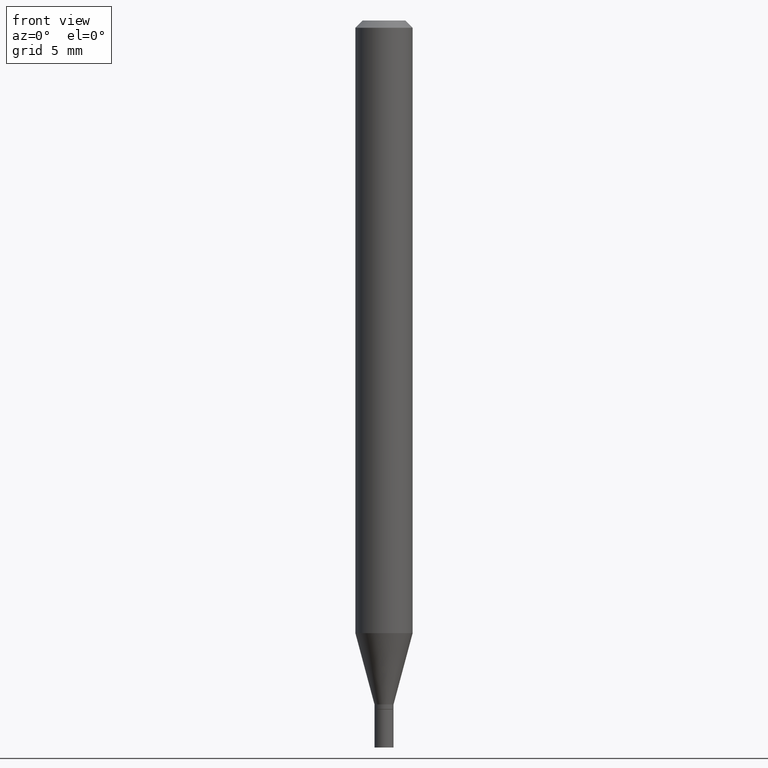
[diagram: clean part render]
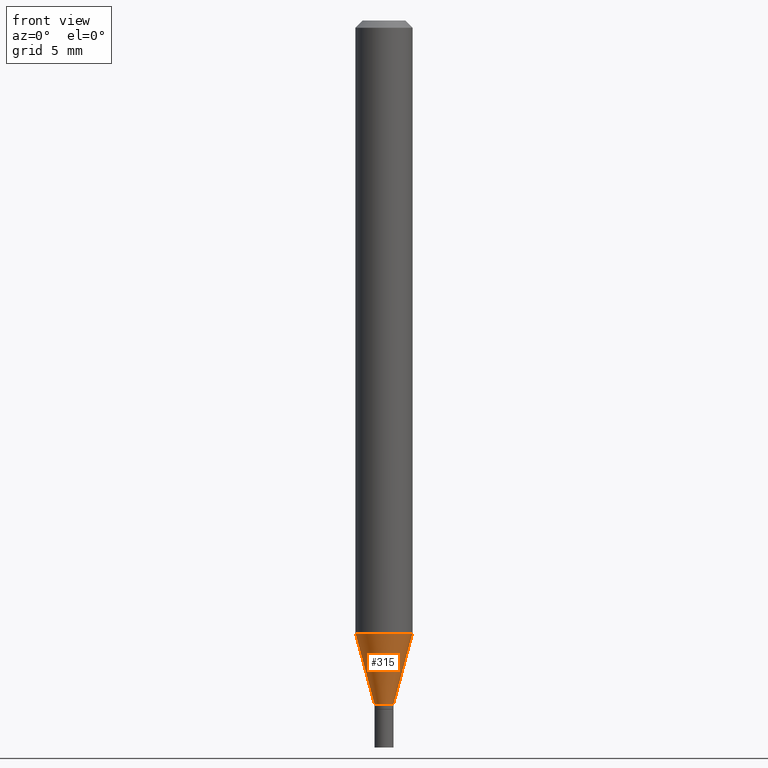
[diagram: same view with one face highlighted and labeled with its STEP entity id]
A machine part, front view. The second image highlights one B-rep face of the part: STEP entity #315.
In plain terms, the highlighted conical surface has half-angle 15 deg.
Its self-contained STEP definition (entity closure, byte-faithful):
#19 = DIRECTION ( 'NONE',  ( 0.2588190451025211836, 1.565188264969622559E-15, 0.9659258262890679791 ) ) ;
#36 = VERTEX_POINT ( 'NONE', #184 ) ;
#43 = DIRECTION ( 'NONE',  ( 1.000000000000000000, -6.982962677686266711E-15, 0.000000000000000000 ) ) ;
#44 = CARTESIAN_POINT ( 'NONE',  ( -0.05905000000000001914, -3.994159004369345529E-15, -1.264143800722164368 ) ) ;
#50 = CARTESIAN_POINT ( 'NONE',  ( 3.091424231198372341E-29, -4.413734489835684233E-15, -1.264143800722164368 ) ) ;
#51 = AXIS2_PLACEMENT_3D ( 'NONE', #446, #113, #326 ) ;
#58 = LINE ( 'NONE', #198, #325 ) ;
#75 = CARTESIAN_POINT ( 'NONE',  ( 3.450556485527227151E-29, -4.926480169107677131E-15, -1.410999999999999810 ) ) ;
#77 = CARTESIAN_POINT ( 'NONE',  ( -0.01969999999999989468, -4.390331127266142070E-15, -1.410999999999999810 ) ) ;
#88 = VERTEX_POINT ( 'NONE', #44 ) ;
#93 = LINE ( 'NONE', #381, #219 ) ;
#113 = DIRECTION ( 'NONE',  ( -2.445468806185136597E-29, 3.491481338843145583E-15, 1.000000000000000000 ) ) ;
#117 = CIRCLE ( 'NONE', #388, 0.05905000000000001914 ) ;
#118 = AXIS2_PLACEMENT_3D ( 'NONE', #75, #345, #43 ) ;
#121 = DIRECTION ( 'NONE',  ( -0.2588190451025211836, 5.211531920934547886E-15, 0.9659258262890679791 ) ) ;
#123 = ORIENTED_EDGE ( 'NONE', *, *, #176, .F. ) ;
#132 = ORIENTED_EDGE ( 'NONE', *, *, #197, .T. ) ;
#176 = EDGE_CURVE ( 'NONE', #397, #88, #93, .T. ) ;
#184 = CARTESIAN_POINT ( 'NONE',  ( 0.01969999999999989468, -5.064044533858095556E-15, -1.410999999999999810 ) ) ;
#193 = DIRECTION ( 'NONE',  ( -2.445468806185136597E-29, 3.491481338843145583E-15, 1.000000000000000000 ) ) ;
#194 = CONICAL_SURFACE ( 'NONE', #118, 0.01969999999999989468, 0.2617993877991499074 ) ;
#195 = DIRECTION ( 'NONE',  ( 1.000000000000000000, -6.982962677686270655E-15, 0.000000000000000000 ) ) ;
#197 = EDGE_CURVE ( 'NONE', #36, #382, #58, .T. ) ;
#198 = CARTESIAN_POINT ( 'NONE',  ( 0.01969999999999989468, -5.064044533858095556E-15, -1.410999999999999810 ) ) ;
#203 = ORIENTED_EDGE ( 'NONE', *, *, #213, .F. ) ;
#213 = EDGE_CURVE ( 'NONE', #88, #382, #117, .T. ) ;
#219 = VECTOR ( 'NONE', #121, 39.37007874015748854 ) ;
#239 = CIRCLE ( 'NONE', #51, 0.01969999999999989468 ) ;
#245 = FACE_OUTER_BOUND ( 'NONE', #432, .T. ) ;
#303 = ORIENTED_EDGE ( 'NONE', *, *, #453, .T. ) ;
#315 = ADVANCED_FACE ( 'NONE', ( #245 ), #194, .T. ) ;
#324 = CARTESIAN_POINT ( 'NONE',  ( 0.05905000000000001914, -4.826078435953059153E-15, -1.264143800722164368 ) ) ;
#325 = VECTOR ( 'NONE', #19, 39.37007874015748854 ) ;
#326 = DIRECTION ( 'NONE',  ( 1.000000000000000000, -6.982962677686266711E-15, 0.000000000000000000 ) ) ;
#345 = DIRECTION ( 'NONE',  ( -2.445468806185136597E-29, 3.491481338843145583E-15, 1.000000000000000000 ) ) ;
#381 = CARTESIAN_POINT ( 'NONE',  ( -0.01969999999999989468, -4.786503250162937822E-15, -1.410999999999999810 ) ) ;
#382 = VERTEX_POINT ( 'NONE', #324 ) ;
#388 = AXIS2_PLACEMENT_3D ( 'NONE', #50, #193, #195 ) ;
#397 = VERTEX_POINT ( 'NONE', #77 ) ;
#432 = EDGE_LOOP ( 'NONE', ( #123, #303, #132, #203 ) ) ;
#446 = CARTESIAN_POINT ( 'NONE',  ( 3.450556485527227151E-29, -4.926480169107677131E-15, -1.410999999999999810 ) ) ;
#453 = EDGE_CURVE ( 'NONE', #397, #36, #239, .T. ) ;